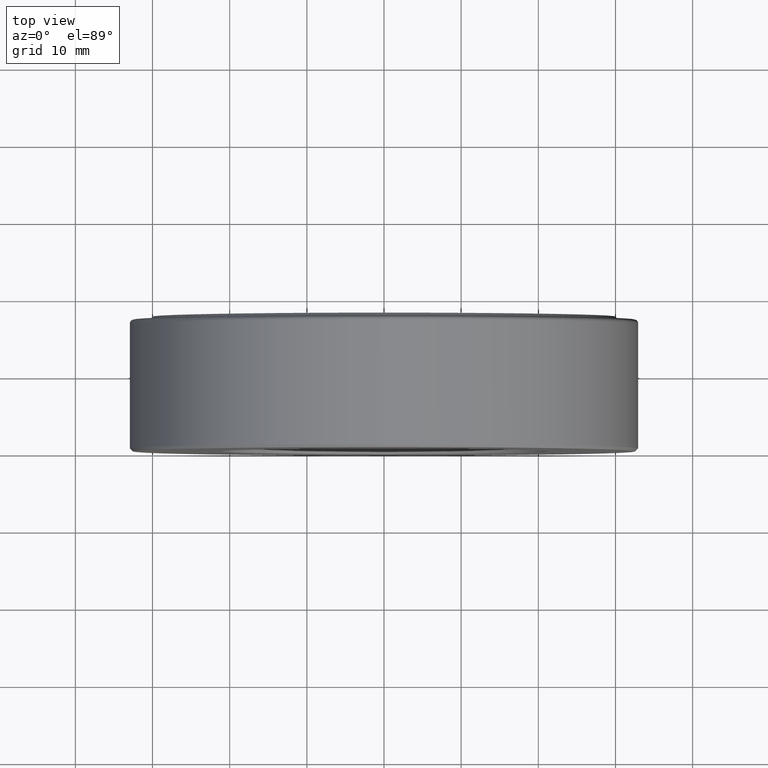
[diagram: clean part render]
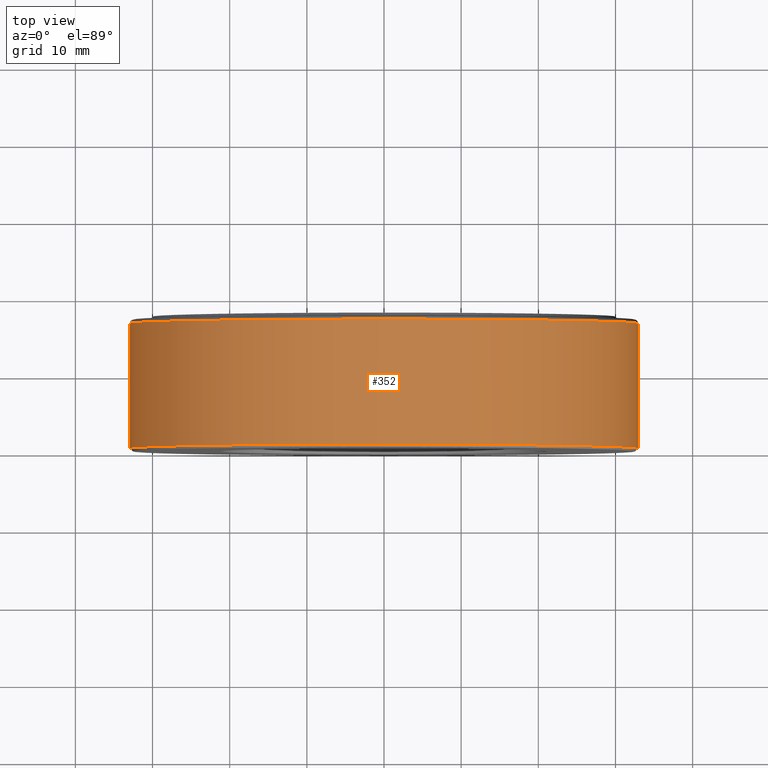
[diagram: same view with one face highlighted and labeled with its STEP entity id]
A machine part, top view. The second image highlights one B-rep face of the part: STEP entity #352.
In plain terms, the highlighted cylindrical surface (bore or boss wall) has radius 32.9406 mm, axis along (-0, 1, -0).
Its self-contained STEP definition (entity closure, byte-faithful):
#8 = AXIS2_PLACEMENT_3D ( 'NONE', #452, #72, #394 ) ;
#16 = EDGE_CURVE ( 'NONE', #176, #176, #99, .T. ) ;
#27 = EDGE_CURVE ( 'NONE', #537, #537, #337, .T. ) ;
#72 = DIRECTION ( 'NONE',  ( -0.0000000000000000000, 1.000000000000000000, -0.0000000000000000000 ) ) ;
#95 = DIRECTION ( 'NONE',  ( 0.0000000000000000000, 0.0000000000000000000, 1.000000000000000000 ) ) ;
#99 = CIRCLE ( 'NONE', #8, 1.296875000000000000 ) ;
#137 = DIRECTION ( 'NONE',  ( -0.0000000000000000000, 1.000000000000000000, -0.0000000000000000000 ) ) ;
#144 = ORIENTED_EDGE ( 'NONE', *, *, #16, .F. ) ;
#161 = FACE_OUTER_BOUND ( 'NONE', #209, .T. ) ;
#176 = VERTEX_POINT ( 'NONE', #441 ) ;
#181 = AXIS2_PLACEMENT_3D ( 'NONE', #450, #494, #398 ) ;
#209 = EDGE_LOOP ( 'NONE', ( #427 ) ) ;
#273 = FACE_OUTER_BOUND ( 'NONE', #523, .T. ) ;
#337 = CIRCLE ( 'NONE', #181, 1.296875000000000000 ) ;
#352 = ADVANCED_FACE ( 'NONE', ( #273, #161 ), #506, .T. ) ;
#387 = CARTESIAN_POINT ( 'NONE',  ( 0.0000000000000000000, 0.01499999999999984000, 1.296875000000000000 ) ) ;
#394 = DIRECTION ( 'NONE',  ( 0.0000000000000000000, 0.0000000000000000000, 1.000000000000000000 ) ) ;
#398 = DIRECTION ( 'NONE',  ( 0.0000000000000000000, 0.0000000000000000000, 1.000000000000000000 ) ) ;
#427 = ORIENTED_EDGE ( 'NONE', *, *, #27, .T. ) ;
#429 = AXIS2_PLACEMENT_3D ( 'NONE', #471, #137, #95 ) ;
#441 = CARTESIAN_POINT ( 'NONE',  ( 0.0000000000000000000, 0.6524999999999997500, 1.296875000000000000 ) ) ;
#450 = CARTESIAN_POINT ( 'NONE',  ( 0.0000000000000000000, 0.01499999999999984000, 0.0000000000000000000 ) ) ;
#452 = CARTESIAN_POINT ( 'NONE',  ( 0.0000000000000000000, 0.6524999999999997500, 0.0000000000000000000 ) ) ;
#471 = CARTESIAN_POINT ( 'NONE',  ( 0.0000000000000000000, 0.0000000000000000000, 0.0000000000000000000 ) ) ;
#494 = DIRECTION ( 'NONE',  ( -0.0000000000000000000, 1.000000000000000000, -0.0000000000000000000 ) ) ;
#506 = CYLINDRICAL_SURFACE ( 'NONE', #429, 1.296875000000000000 ) ;
#523 = EDGE_LOOP ( 'NONE', ( #144 ) ) ;
#537 = VERTEX_POINT ( 'NONE', #387 ) ;